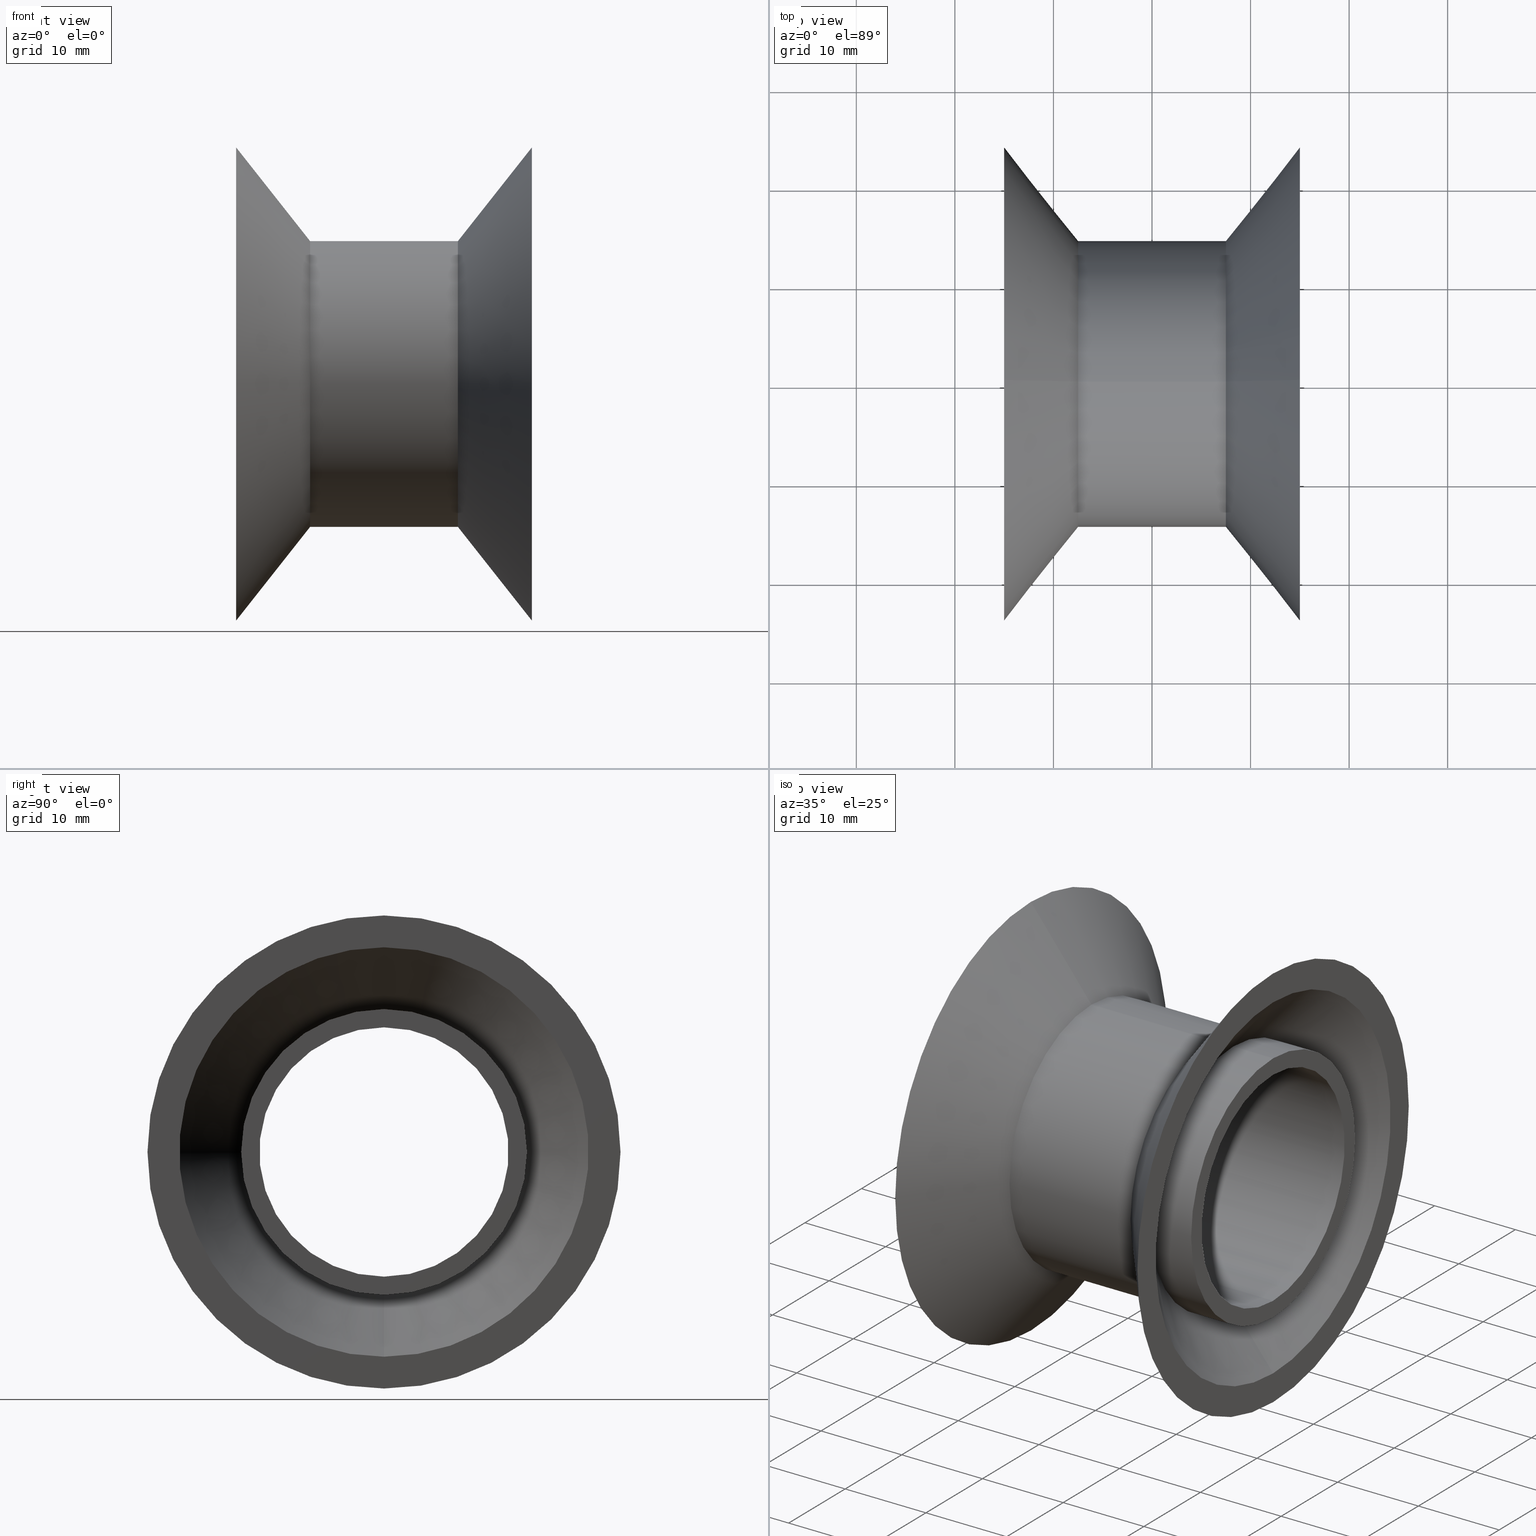
[diagram: canonical four-view strip — front | top / right | iso, engineering-drawing reading convention]
A machine part, canonical four-view strip (front | top / right | iso — engineering-drawing reading convention). The complete STEP part file that produces these views, byte-faithful:
ISO-10303-21;
HEADER;
FILE_DESCRIPTION (( 'STEP AP214' ),
    '1' );
FILE_NAME ('0023651.step',
    '2020-07-02T08:23:09',
    ( '' ),
    ( '' ),
    'SwSTEP 2.0',
    'SolidWorks 2018',
    '' );
FILE_SCHEMA (( 'AUTOMOTIVE_DESIGN' ));
ENDSEC;

DATA;
#1 = FACE_OUTER_BOUND ( 'NONE', #34, .T. ) ;
#2 = ORIENTED_EDGE ( 'NONE', *, *, #558, .T. ) ;
#3 = AXIS2_PLACEMENT_3D ( 'NONE', #494, #324, #500 ) ;
#4 = CARTESIAN_POINT ( 'NONE',  ( 15.00000000000000000, 0.0000000000000000000, -23.99999999999999289 ) ) ;
#5 = CARTESIAN_POINT ( 'NONE',  ( 15.00000000000000000, 0.0000000000000000000, -23.99999999999999289 ) ) ;
#6 = EDGE_CURVE ( 'NONE', #264, #127, #368, .T. ) ;
#7 = FACE_OUTER_BOUND ( 'NONE', #549, .T. ) ;
#8 = DIRECTION ( 'NONE',  ( 0.6196442885790208743, 0.0000000000000000000, -0.7848827655334259523 ) ) ;
#9 = PLANE ( 'NONE',  #327 ) ;
#10 = ORIENTED_EDGE ( 'NONE', *, *, #165, .T. ) ;
#11 = VERTEX_POINT ( 'NONE', #223 ) ;
#12 = PRODUCT ( '0023651', '0023651', '', ( #20 ) ) ;
#13 = ADVANCED_FACE ( 'NONE', ( #1 ), #148, .T. ) ;
#14 = DIRECTION ( 'NONE',  ( 0.0000000000000000000, 0.0000000000000000000, 1.000000000000000000 ) ) ;
#15 = CARTESIAN_POINT ( 'NONE',  ( 15.00000000000000000, 12.65000000000000036, 0.0000000000000000000 ) ) ;
#16 = CARTESIAN_POINT ( 'NONE',  ( 0.0000000000000000000, 0.0000000000000000000, 14.49999999999999822 ) ) ;
#17 = SURFACE_STYLE_FILL_AREA ( #213 ) ;
#18 = FACE_OUTER_BOUND ( 'NONE', #472, .T. ) ;
#19 = CARTESIAN_POINT ( 'NONE',  ( 10.04815124987582031, 0.0000000000000000000, 0.0000000000000000000 ) ) ;
#20 = PRODUCT_CONTEXT ( 'NONE', #556, 'mechanical' ) ;
#21 = EDGE_LOOP ( 'NONE', ( #95, #183 ) ) ;
#22 = CARTESIAN_POINT ( 'NONE',  ( 7.500000000000000000, 0.0000000000000000000, 0.0000000000000000000 ) ) ;
#23 = EDGE_CURVE ( 'NONE', #11, #164, #498, .T. ) ;
#24 = DIRECTION ( 'NONE',  ( 0.0000000000000000000, 0.0000000000000000000, 1.000000000000000000 ) ) ;
#25 = DIRECTION ( 'NONE',  ( 0.0000000000000000000, 0.0000000000000000000, 1.000000000000000000 ) ) ;
#26 = CYLINDRICAL_SURFACE ( 'NONE', #140, 12.65000000000000036 ) ;
#27 = ORIENTED_EDGE ( 'NONE', *, *, #103, .F. ) ;
#28 = CARTESIAN_POINT ( 'NONE',  ( -7.500000000000000000, 0.0000000000000000000, 0.0000000000000000000 ) ) ;
#29 = LINE ( 'NONE', #408, #529 ) ;
#30 = ORIENTED_EDGE ( 'NONE', *, *, #198, .T. ) ;
#31 = DIRECTION ( 'NONE',  ( -1.000000000000000000, -0.0000000000000000000, -0.0000000000000000000 ) ) ;
#32 = SURFACE_STYLE_FILL_AREA ( #466 ) ;
#33 = ORIENTED_EDGE ( 'NONE', *, *, #133, .F. ) ;
#34 = EDGE_LOOP ( 'NONE', ( #478, #568, #334, #537 ) ) ;
#35 = VERTEX_POINT ( 'NONE', #313 ) ;
#36 = DIRECTION ( 'NONE',  ( -1.000000000000000000, -0.0000000000000000000, -0.0000000000000000000 ) ) ;
#37 = CARTESIAN_POINT ( 'NONE',  ( 0.0000000000000000000, 0.0000000000000000000, 0.0000000000000000000 ) ) ;
#38 = PRESENTATION_LAYER_ASSIGNMENT (  '', '', ( #305 ) ) ;
#39 = CARTESIAN_POINT ( 'NONE',  ( -7.500000000000000000, 0.0000000000000000000, 14.49999999999999822 ) ) ;
#40 = CIRCLE ( 'NONE', #492, 14.49999999999999822 ) ;
#41 = DIRECTION ( 'NONE',  ( -1.000000000000000000, -0.0000000000000000000, -0.0000000000000000000 ) ) ;
#42 = DIRECTION ( 'NONE',  ( 0.0000000000000000000, 0.0000000000000000000, 1.000000000000000000 ) ) ;
#43 = EDGE_CURVE ( 'NONE', #390, #243, #443, .T. ) ;
#44 = ORIENTED_EDGE ( 'NONE', *, *, #558, .F. ) ;
#45 = DIRECTION ( 'NONE',  ( -0.6196442885790208743, 9.612041665164326271E-17, -0.7848827655334259523 ) ) ;
#46 = ORIENTED_EDGE ( 'NONE', *, *, #321, .F. ) ;
#47 = CARTESIAN_POINT ( 'NONE',  ( 0.0000000000000000000, 1.549178200921401754E-15, -12.65000000000000036 ) ) ;
#48 = LINE ( 'NONE', #275, #67 ) ;
#49 = CARTESIAN_POINT ( 'NONE',  ( 0.0000000000000000000, 0.0000000000000000000, 0.0000000000000000000 ) ) ;
#50 = AXIS2_PLACEMENT_3D ( 'NONE', #236, #413, #189 ) ;
#51 = ORIENTED_EDGE ( 'NONE', *, *, #266, .T. ) ;
#52 = CARTESIAN_POINT ( 'NONE',  ( 7.500000000000000000, 2.357445088358654363E-15, 14.49999999999999822 ) ) ;
#53 = FACE_BOUND ( 'NONE', #418, .T. ) ;
#54 = CARTESIAN_POINT ( 'NONE',  ( -15.00000000000000000, 0.0000000000000000000, 0.0000000000000000000 ) ) ;
#55 = ORIENTED_EDGE ( 'NONE', *, *, #207, .F. ) ;
#56 = EDGE_LOOP ( 'NONE', ( #201, #491, #80, #146 ) ) ;
#57 = DIRECTION ( 'NONE',  ( -0.6196442885790198751, 0.0000000000000000000, 0.7848827655334268405 ) ) ;
#58 = CARTESIAN_POINT ( 'NONE',  ( 14.99999999999999645, 20.77234175015728823, 0.0000000000000000000 ) ) ;
#59 = AXIS2_PLACEMENT_3D ( 'NONE', #541, #419, #363 ) ;
#60 = CARTESIAN_POINT ( 'NONE',  ( -15.00000000000000000, 0.0000000000000000000, 0.0000000000000000000 ) ) ;
#61 = ORIENTED_EDGE ( 'NONE', *, *, #287, .T. ) ;
#62 = ORIENTED_EDGE ( 'NONE', *, *, #218, .T. ) ;
#63 = EDGE_CURVE ( 'NONE', #221, #11, #199, .T. ) ;
#64 = CARTESIAN_POINT ( 'NONE',  ( -7.500000000000000000, 0.0000000000000000000, 14.49999999999999822 ) ) ;
#65 = CARTESIAN_POINT ( 'NONE',  ( 10.04815124987582031, 0.0000000000000000000, -14.49999999999998757 ) ) ;
#66 = CIRCLE ( 'NONE', #336, 20.77234175015728823 ) ;
#67 = VECTOR ( 'NONE', #371, 1000.000000000000000 ) ;
#68 = DIRECTION ( 'NONE',  ( 0.0000000000000000000, 0.0000000000000000000, 1.000000000000000000 ) ) ;
#69 = EDGE_LOOP ( 'NONE', ( #567, #544, #156, #200 ) ) ;
#70 = DIRECTION ( 'NONE',  ( -0.0000000000000000000, 0.0000000000000000000, 1.000000000000000000 ) ) ;
#71 = DIRECTION ( 'NONE',  ( -1.000000000000000000, -0.0000000000000000000, -0.0000000000000000000 ) ) ;
#72 = VERTEX_POINT ( 'NONE', #535 ) ;
#73 = CARTESIAN_POINT ( 'NONE',  ( -15.00000000000000000, 1.775737858763660832E-15, -14.49999999999998934 ) ) ;
#74 = ORIENTED_EDGE ( 'NONE', *, *, #6, .T. ) ;
#75 = ADVANCED_FACE ( 'NONE', ( #484 ), #114, .T. ) ;
#76 = EDGE_CURVE ( 'NONE', #476, #35, #347, .T. ) ;
#77 = CARTESIAN_POINT ( 'NONE',  ( 14.99999999999999467, 0.0000000000000000000, -20.77234175015728823 ) ) ;
#78 = DIRECTION ( 'NONE',  ( 0.0000000000000000000, 0.0000000000000000000, 1.000000000000000000 ) ) ;
#79 = FACE_OUTER_BOUND ( 'NONE', #555, .T. ) ;
#80 = ORIENTED_EDGE ( 'NONE', *, *, #125, .F. ) ;
#81 = PLANE ( 'NONE',  #435 ) ;
#82 = DIRECTION ( 'NONE',  ( 0.0000000000000000000, 0.0000000000000000000, 1.000000000000000000 ) ) ;
#83 = CONICAL_SURFACE ( 'NONE', #109, 23.99999999999999289, 0.9025069079643123215 ) ;
#84 = EDGE_CURVE ( 'NONE', #35, #448, #543, .T. ) ;
#85 = DIRECTION ( 'NONE',  ( -1.000000000000000000, -0.0000000000000000000, -0.0000000000000000000 ) ) ;
#86 = ORIENTED_EDGE ( 'NONE', *, *, #133, .T. ) ;
#87 = VERTEX_POINT ( 'NONE', #175 ) ;
#88 = DIRECTION ( 'NONE',  ( -1.000000000000000000, -0.0000000000000000000, -0.0000000000000000000 ) ) ;
#89 = DIRECTION ( 'NONE',  ( 0.0000000000000000000, 0.0000000000000000000, 1.000000000000000000 ) ) ;
#90 = ORIENTED_EDGE ( 'NONE', *, *, #469, .F. ) ;
#91 = ORIENTED_EDGE ( 'NONE', *, *, #274, .T. ) ;
#92 = DIRECTION ( 'NONE',  ( -1.000000000000000000, -0.0000000000000000000, -0.0000000000000000000 ) ) ;
#93 = EDGE_CURVE ( 'NONE', #221, #361, #29, .T. ) ;
#94 = AXIS2_PLACEMENT_3D ( 'NONE', #203, #288, #462 ) ;
#95 = ORIENTED_EDGE ( 'NONE', *, *, #550, .F. ) ;
#96 = FACE_OUTER_BOUND ( 'NONE', #300, .T. ) ;
#97 = DIRECTION ( 'NONE',  ( 0.0000000000000000000, 0.0000000000000000000, 1.000000000000000000 ) ) ;
#98 = AXIS2_PLACEMENT_3D ( 'NONE', #144, #104, #193 ) ;
#99 = DIRECTION ( 'NONE',  ( 0.0000000000000000000, 0.0000000000000000000, 1.000000000000000000 ) ) ;
#100 = EDGE_LOOP ( 'NONE', ( #434, #30 ) ) ;
#101 = ORIENTED_EDGE ( 'NONE', *, *, #185, .F. ) ;
#102 = CARTESIAN_POINT ( 'NONE',  ( -14.99999999999999467, 0.0000000000000000000, 20.77234175015728823 ) ) ;
#103 = EDGE_CURVE ( 'NONE', #302, #87, #233, .T. ) ;
#104 = DIRECTION ( 'NONE',  ( -1.000000000000000000, -0.0000000000000000000, -0.0000000000000000000 ) ) ;
#105 = DIRECTION ( 'NONE',  ( -0.0000000000000000000, 0.0000000000000000000, 1.000000000000000000 ) ) ;
#106 = EDGE_LOOP ( 'NONE', ( #260, #74 ) ) ;
#107 = DIRECTION ( 'NONE',  ( 0.0000000000000000000, 0.0000000000000000000, 1.000000000000000000 ) ) ;
#108 = DIRECTION ( 'NONE',  ( 0.0000000000000000000, 0.0000000000000000000, 1.000000000000000000 ) ) ;
#109 = AXIS2_PLACEMENT_3D ( 'NONE', #323, #195, #269 ) ;
#110 =( LENGTH_UNIT ( ) NAMED_UNIT ( * ) SI_UNIT ( .MILLI., .METRE. ) );
#111 =( NAMED_UNIT ( * ) PLANE_ANGLE_UNIT ( ) SI_UNIT ( $, .RADIAN. ) );
#112 = FACE_OUTER_BOUND ( 'NONE', #308, .T. ) ;
#113 = CARTESIAN_POINT ( 'NONE',  ( 10.04815124987582031, 0.0000000000000000000, 0.0000000000000000000 ) ) ;
#114 = CYLINDRICAL_SURFACE ( 'NONE', #173, 14.49999999999998934 ) ;
#115 = AXIS2_PLACEMENT_3D ( 'NONE', #126, #309, #307 ) ;
#116 = ORIENTED_EDGE ( 'NONE', *, *, #350, .T. ) ;
#117 = SURFACE_SIDE_STYLE ('',( #32 ) ) ;
#118 = CARTESIAN_POINT ( 'NONE',  ( -15.00000000000000000, 0.0000000000000000000, 0.0000000000000000000 ) ) ;
#119 = APPLICATION_PROTOCOL_DEFINITION ( 'draft international standard', 'automotive_design', 1998, #556 ) ;
#120 = CARTESIAN_POINT ( 'NONE',  ( -15.00000000000000000, 0.0000000000000000000, 0.0000000000000000000 ) ) ;
#121 = DIRECTION ( 'NONE',  ( -1.000000000000000000, -0.0000000000000000000, -0.0000000000000000000 ) ) ;
#122 = ADVANCED_FACE ( 'NONE', ( #79 ), #523, .T. ) ;
#123 = ORIENTED_EDGE ( 'NONE', *, *, #451, .T. ) ;
#124 = AXIS2_PLACEMENT_3D ( 'NONE', #553, #159, #108 ) ;
#125 = EDGE_CURVE ( 'NONE', #524, #341, #320, .T. ) ;
#126 = CARTESIAN_POINT ( 'NONE',  ( -7.500000000000000000, 0.0000000000000000000, 0.0000000000000000000 ) ) ;
#127 = VERTEX_POINT ( 'NONE', #570 ) ;
#128 = DIRECTION ( 'NONE',  ( -1.000000000000000000, -0.0000000000000000000, -0.0000000000000000000 ) ) ;
#129 = ORIENTED_EDGE ( 'NONE', *, *, #410, .T. ) ;
#130 = AXIS2_PLACEMENT_3D ( 'NONE', #152, #284, #24 ) ;
#131 = DIRECTION ( 'NONE',  ( 0.0000000000000000000, 0.0000000000000000000, -1.000000000000000000 ) ) ;
#132 = LINE ( 'NONE', #4, #387 ) ;
#133 = EDGE_CURVE ( 'NONE', #243, #390, #417, .T. ) ;
#134 = CARTESIAN_POINT ( 'NONE',  ( 15.00000000000000000, 2.939152317953647106E-15, 23.99999999999999289 ) ) ;
#135 = ORIENTED_EDGE ( 'NONE', *, *, #530, .F. ) ;
#136 = ORIENTED_EDGE ( 'NONE', *, *, #266, .F. ) ;
#137 = CARTESIAN_POINT ( 'NONE',  ( 0.0000000000000000000, 0.0000000000000000000, 14.49999999999998934 ) ) ;
#138 = FACE_OUTER_BOUND ( 'NONE', #170, .T. ) ;
#139 = UNCERTAINTY_MEASURE_WITH_UNIT (LENGTH_MEASURE( 1.000000000000000082E-05 ), #110, 'distance_accuracy_value', 'NONE');
#140 = AXIS2_PLACEMENT_3D ( 'NONE', #463, #510, #161 ) ;
#141 = ORIENTED_EDGE ( 'NONE', *, *, #194, .F. ) ;
#142 = AXIS2_PLACEMENT_3D ( 'NONE', #405, #311, #82 ) ;
#143 = FACE_OUTER_BOUND ( 'NONE', #234, .T. ) ;
#144 = CARTESIAN_POINT ( 'NONE',  ( 15.00000000000000000, 0.0000000000000000000, 0.0000000000000000000 ) ) ;
#145 = PLANE ( 'NONE',  #151 ) ;
#146 = ORIENTED_EDGE ( 'NONE', *, *, #410, .F. ) ;
#147 = CARTESIAN_POINT ( 'NONE',  ( 7.500000000000000000, 0.0000000000000000000, -14.49999999999999822 ) ) ;
#148 = CYLINDRICAL_SURFACE ( 'NONE', #522, 14.49999999999998934 ) ;
#149 = ORIENTED_EDGE ( 'NONE', *, *, #43, .F. ) ;
#150 = CARTESIAN_POINT ( 'NONE',  ( 14.99999999999999467, 2.543878183512505106E-15, 20.77234175015728823 ) ) ;
#151 = AXIS2_PLACEMENT_3D ( 'NONE', #15, #335, #70 ) ;
#152 = CARTESIAN_POINT ( 'NONE',  ( -7.500000000000000000, 0.0000000000000000000, 0.0000000000000000000 ) ) ;
#153 = CIRCLE ( 'NONE', #98, 23.99999999999999289 ) ;
#154 = DIRECTION ( 'NONE',  ( 0.0000000000000000000, 0.0000000000000000000, 1.000000000000000000 ) ) ;
#155 = ADVANCED_FACE ( 'NONE', ( #411, #389 ), #81, .F. ) ;
#156 = ORIENTED_EDGE ( 'NONE', *, *, #310, .F. ) ;
#157 = ORIENTED_EDGE ( 'NONE', *, *, #84, .F. ) ;
#158 = PRODUCT_DEFINITION ( 'UNKNOWN', '', #509, #196 ) ;
#159 = DIRECTION ( 'NONE',  ( -1.000000000000000000, -0.0000000000000000000, -0.0000000000000000000 ) ) ;
#160 = CARTESIAN_POINT ( 'NONE',  ( 0.0000000000000000000, 0.0000000000000000000, 14.49999999999998934 ) ) ;
#161 = DIRECTION ( 'NONE',  ( 0.0000000000000000000, 0.0000000000000000000, 1.000000000000000000 ) ) ;
#162 = CIRCLE ( 'NONE', #297, 12.65000000000000036 ) ;
#163 = SURFACE_SIDE_STYLE ('',( #17 ) ) ;
#164 = VERTEX_POINT ( 'NONE', #440 ) ;
#165 = EDGE_CURVE ( 'NONE', #390, #127, #465, .T. ) ;
#166 = EDGE_LOOP ( 'NONE', ( #192, #280 ) ) ;
#167 = ADVANCED_FACE ( 'NONE', ( #536 ), #513, .T. ) ;
#168 = LINE ( 'NONE', #547, #254 ) ;
#169 = CIRCLE ( 'NONE', #358, 20.77234175015728823 ) ;
#170 = EDGE_LOOP ( 'NONE', ( #425, #445 ) ) ;
#171 = AXIS2_PLACEMENT_3D ( 'NONE', #60, #375, #154 ) ;
#172 = DIRECTION ( 'NONE',  ( -1.000000000000000000, -0.0000000000000000000, -0.0000000000000000000 ) ) ;
#173 = AXIS2_PLACEMENT_3D ( 'NONE', #49, #92, #357 ) ;
#174 = CIRCLE ( 'NONE', #403, 23.99999999999999289 ) ;
#175 = CARTESIAN_POINT ( 'NONE',  ( 15.00000000000000000, 2.939152317953647106E-15, 23.99999999999999289 ) ) ;
#176 = ORIENTED_EDGE ( 'NONE', *, *, #574, .T. ) ;
#177 = DIRECTION ( 'NONE',  ( 1.000000000000000000, 0.0000000000000000000, 0.0000000000000000000 ) ) ;
#178 = EDGE_LOOP ( 'NONE', ( #44, #486, #176, #467 ) ) ;
#179 = DIRECTION ( 'NONE',  ( 0.0000000000000000000, 0.0000000000000000000, -1.000000000000000000 ) ) ;
#180 = AXIS2_PLACEMENT_3D ( 'NONE', #202, #378, #505 ) ;
#181 = FACE_OUTER_BOUND ( 'NONE', #106, .T. ) ;
#182 = CARTESIAN_POINT ( 'NONE',  ( 15.00000000000000000, 0.0000000000000000000, 0.0000000000000000000 ) ) ;
#183 = ORIENTED_EDGE ( 'NONE', *, *, #496, .F. ) ;
#184 = ORIENTED_EDGE ( 'NONE', *, *, #321, .T. ) ;
#185 = EDGE_CURVE ( 'NONE', #243, #264, #306, .T. ) ;
#186 = DIRECTION ( 'NONE',  ( -1.000000000000000000, -0.0000000000000000000, -0.0000000000000000000 ) ) ;
#187 = CONICAL_SURFACE ( 'NONE', #124, 20.77234175015728823, 0.9025069079643135428 ) ;
#188 = AXIS2_PLACEMENT_3D ( 'NONE', #333, #241, #107 ) ;
#189 = DIRECTION ( 'NONE',  ( 0.0000000000000000000, 0.0000000000000000000, 1.000000000000000000 ) ) ;
#190 = DIRECTION ( 'NONE',  ( -1.000000000000000000, -0.0000000000000000000, -0.0000000000000000000 ) ) ;
#191 = VECTOR ( 'NONE', #488, 1000.000000000000000 ) ;
#192 = ORIENTED_EDGE ( 'NONE', *, *, #446, .F. ) ;
#193 = DIRECTION ( 'NONE',  ( 0.0000000000000000000, 0.0000000000000000000, 1.000000000000000000 ) ) ;
#194 = EDGE_CURVE ( 'NONE', #341, #524, #169, .T. ) ;
#195 = DIRECTION ( 'NONE',  ( 1.000000000000000000, 0.0000000000000000000, 0.0000000000000000000 ) ) ;
#196 = PRODUCT_DEFINITION_CONTEXT ( 'detailed design', #283, 'design' ) ;
#197 = ADVANCED_FACE ( 'NONE', ( #277 ), #206, .T. ) ;
#198 = EDGE_CURVE ( 'NONE', #507, #72, #527, .T. ) ;
#199 = CIRCLE ( 'NONE', #329, 14.49999999999998934 ) ;
#200 = ORIENTED_EDGE ( 'NONE', *, *, #165, .F. ) ;
#201 = ORIENTED_EDGE ( 'NONE', *, *, #362, .T. ) ;
#202 = CARTESIAN_POINT ( 'NONE',  ( 0.0000000000000000000, 0.0000000000000000000, 0.0000000000000000000 ) ) ;
#203 = CARTESIAN_POINT ( 'NONE',  ( 0.0000000000000000000, 0.0000000000000000000, 0.0000000000000000000 ) ) ;
#204 = ADVANCED_FACE ( 'NONE', ( #377 ), #268, .T. ) ;
#205 = LINE ( 'NONE', #160, #489 ) ;
#206 = CYLINDRICAL_SURFACE ( 'NONE', #552, 14.49999999999998934 ) ;
#207 = EDGE_CURVE ( 'NONE', #299, #87, #174, .T. ) ;
#208 = ORIENTED_EDGE ( 'NONE', *, *, #301, .T. ) ;
#209 = ORIENTED_EDGE ( 'NONE', *, *, #451, .F. ) ;
#210 = SURFACE_STYLE_USAGE ( .BOTH. , #163 ) ;
#211 = CARTESIAN_POINT ( 'NONE',  ( 0.0000000000000000000, 1.775737858763660832E-15, -14.49999999999998934 ) ) ;
#212 = ADVANCED_FACE ( 'NONE', ( #138, #53 ), #145, .F. ) ;
#213 = FILL_AREA_STYLE ('',( #386 ) ) ;
#214 = CARTESIAN_POINT ( 'NONE',  ( 10.04815124987582031, 0.0000000000000000000, 0.0000000000000000000 ) ) ;
#215 = CARTESIAN_POINT ( 'NONE',  ( -10.04815124987582031, 0.0000000000000000000, 0.0000000000000000000 ) ) ;
#216 = AXIS2_PLACEMENT_3D ( 'NONE', #338, #559, #438 ) ;
#217 = EDGE_LOOP ( 'NONE', ( #157, #406, #222, #407 ) ) ;
#218 = EDGE_CURVE ( 'NONE', #448, #572, #162, .T. ) ;
#219 = DIRECTION ( 'NONE',  ( -1.000000000000000000, -0.0000000000000000000, -0.0000000000000000000 ) ) ;
#220 = COLOUR_RGB ( '',0.9254901960784314152, 0.9254901960784314152, 0.9058823529411764719 ) ;
#221 = VERTEX_POINT ( 'NONE', #366 ) ;
#222 = ORIENTED_EDGE ( 'NONE', *, *, #248, .T. ) ;
#223 = CARTESIAN_POINT ( 'NONE',  ( 15.00000000000000000, 0.0000000000000000000, 14.49999999999998934 ) ) ;
#224 = CARTESIAN_POINT ( 'NONE',  ( 15.00000000000000000, 0.0000000000000000000, 0.0000000000000000000 ) ) ;
#225 = EDGE_CURVE ( 'NONE', #255, #271, #540, .T. ) ;
#226 = VECTOR ( 'NONE', #293, 1000.000000000000114 ) ;
#227 = ORIENTED_EDGE ( 'NONE', *, *, #207, .T. ) ;
#228 = AXIS2_PLACEMENT_3D ( 'NONE', #528, #88, #532 ) ;
#229 = DIRECTION ( 'NONE',  ( -1.000000000000000000, -0.0000000000000000000, -0.0000000000000000000 ) ) ;
#230 = AXIS2_PLACEMENT_3D ( 'NONE', #444, #480, #385 ) ;
#231 = VECTOR ( 'NONE', #382, 1000.000000000000114 ) ;
#232 = ORIENTED_EDGE ( 'NONE', *, *, #274, .F. ) ;
#233 = LINE ( 'NONE', #134, #554 ) ;
#234 = EDGE_LOOP ( 'NONE', ( #242, #232, #370, #317 ) ) ;
#235 = CARTESIAN_POINT ( 'NONE',  ( 7.500000000000000000, 0.0000000000000000000, 0.0000000000000000000 ) ) ;
#236 = CARTESIAN_POINT ( 'NONE',  ( -10.04815124987582031, 0.0000000000000000000, 0.0000000000000000000 ) ) ;
#237 = ORIENTED_EDGE ( 'NONE', *, *, #103, .T. ) ;
#238 = DIRECTION ( 'NONE',  ( -1.000000000000000000, -0.0000000000000000000, -0.0000000000000000000 ) ) ;
#239 = DIRECTION ( 'NONE',  ( 1.000000000000000000, 0.0000000000000000000, 0.0000000000000000000 ) ) ;
#240 = PRESENTATION_LAYER_ASSIGNMENT (  '', '', ( #546 ) ) ;
#241 = DIRECTION ( 'NONE',  ( -1.000000000000000000, -0.0000000000000000000, -0.0000000000000000000 ) ) ;
#242 = ORIENTED_EDGE ( 'NONE', *, *, #477, .F. ) ;
#243 = VERTEX_POINT ( 'NONE', #270 ) ;
#244 =( NAMED_UNIT ( * ) PLANE_ANGLE_UNIT ( ) SI_UNIT ( $, .RADIAN. ) );
#245 = CARTESIAN_POINT ( 'NONE',  ( 10.04815124987582031, 0.0000000000000000000, 0.0000000000000000000 ) ) ;
#246 = DIRECTION ( 'NONE',  ( 0.6196442885790198751, 9.612041665164336132E-17, 0.7848827655334268405 ) ) ;
#247 = DIRECTION ( 'NONE',  ( 0.0000000000000000000, 0.0000000000000000000, 1.000000000000000000 ) ) ;
#248 = EDGE_CURVE ( 'NONE', #476, #572, #168, .T. ) ;
#249 = ORIENTED_EDGE ( 'NONE', *, *, #23, .F. ) ;
#250 = CARTESIAN_POINT ( 'NONE',  ( 15.00000000000000000, 0.0000000000000000000, 12.65000000000000036 ) ) ;
#251 = EDGE_LOOP ( 'NONE', ( #326, #426 ) ) ;
#252 = CARTESIAN_POINT ( 'NONE',  ( -14.99999999999999467, 2.543878183512505106E-15, -20.77234175015728823 ) ) ;
#253 = COLOUR_RGB ( '',0.9254901960784314152, 0.9254901960784314152, 0.9058823529411764719 ) ;
#254 = VECTOR ( 'NONE', #186, 1000.000000000000000 ) ;
#255 = VERTEX_POINT ( 'NONE', #456 ) ;
#256 = CARTESIAN_POINT ( 'NONE',  ( -7.500000000000000000, 1.775737858763662015E-15, -14.49999999999999822 ) ) ;
#257 = FACE_BOUND ( 'NONE', #251, .T. ) ;
#258 = DIRECTION ( 'NONE',  ( 1.000000000000000000, 0.0000000000000000000, 0.0000000000000000000 ) ) ;
#259 = VECTOR ( 'NONE', #45, 1000.000000000000114 ) ;
#260 = ORIENTED_EDGE ( 'NONE', *, *, #310, .T. ) ;
#261 =( GEOMETRIC_REPRESENTATION_CONTEXT ( 3 ) GLOBAL_UNCERTAINTY_ASSIGNED_CONTEXT ( ( #563 ) ) GLOBAL_UNIT_ASSIGNED_CONTEXT ( ( #429, #244, #464 ) ) REPRESENTATION_CONTEXT ( 'NONE', 'WORKASPACE' ) );
#262 =( GEOMETRIC_REPRESENTATION_CONTEXT ( 3 ) GLOBAL_UNCERTAINTY_ASSIGNED_CONTEXT ( ( #344 ) ) GLOBAL_UNIT_ASSIGNED_CONTEXT ( ( #557, #111, #427 ) ) REPRESENTATION_CONTEXT ( 'NONE', 'WORKASPACE' ) );
#263 = LINE ( 'NONE', #16, #393 ) ;
#264 = VERTEX_POINT ( 'NONE', #493 ) ;
#265 = EDGE_LOOP ( 'NONE', ( #208, #51, #149, #278 ) ) ;
#266 = EDGE_CURVE ( 'NONE', #291, #243, #48, .T. ) ;
#267 = AXIS2_PLACEMENT_3D ( 'NONE', #342, #473, #78 ) ;
#268 = CYLINDRICAL_SURFACE ( 'NONE', #514, 14.49999999999999822 ) ;
#269 = DIRECTION ( 'NONE',  ( 0.0000000000000000000, 0.0000000000000000000, -1.000000000000000000 ) ) ;
#270 = CARTESIAN_POINT ( 'NONE',  ( -7.500000000000000000, 1.775737858763662015E-15, -14.49999999999999822 ) ) ;
#271 = VERTEX_POINT ( 'NONE', #545 ) ;
#272 = ORIENTED_EDGE ( 'NONE', *, *, #301, .F. ) ;
#273 = ORIENTED_EDGE ( 'NONE', *, *, #6, .F. ) ;
#274 = EDGE_CURVE ( 'NONE', #255, #365, #286, .T. ) ;
#275 = CARTESIAN_POINT ( 'NONE',  ( 0.0000000000000000000, 1.775737858763662015E-15, -14.49999999999999822 ) ) ;
#276 = CARTESIAN_POINT ( 'NONE',  ( -14.99999999999999467, 0.0000000000000000000, 0.0000000000000000000 ) ) ;
#277 = FACE_OUTER_BOUND ( 'NONE', #178, .T. ) ;
#278 = ORIENTED_EDGE ( 'NONE', *, *, #460, .F. ) ;
#279 = DIRECTION ( 'NONE',  ( -1.000000000000000000, -0.0000000000000000000, -0.0000000000000000000 ) ) ;
#280 = ORIENTED_EDGE ( 'NONE', *, *, #218, .F. ) ;
#281 =( NAMED_UNIT ( * ) SI_UNIT ( $, .STERADIAN. ) SOLID_ANGLE_UNIT ( ) );
#282 = DIRECTION ( 'NONE',  ( -1.000000000000000000, -0.0000000000000000000, -0.0000000000000000000 ) ) ;
#283 = APPLICATION_CONTEXT ( 'automotive_design' ) ;
#284 = DIRECTION ( 'NONE',  ( -1.000000000000000000, -0.0000000000000000000, -0.0000000000000000000 ) ) ;
#285 = CARTESIAN_POINT ( 'NONE',  ( 15.00000000000000000, 0.0000000000000000000, 0.0000000000000000000 ) ) ;
#286 = CIRCLE ( 'NONE', #50, 14.49999999999998757 ) ;
#287 = EDGE_CURVE ( 'NONE', #11, #221, #402, .T. ) ;
#288 = DIRECTION ( 'NONE',  ( 0.0000000000000000000, 0.0000000000000000000, 1.000000000000000000 ) ) ;
#289 = CARTESIAN_POINT ( 'NONE',  ( 10.04815124987582031, 1.775737858763660437E-15, -14.49999999999998757 ) ) ;
#290 = EDGE_LOOP ( 'NONE', ( #101, #86, #10, #273 ) ) ;
#291 = VERTEX_POINT ( 'NONE', #147 ) ;
#292 = CARTESIAN_POINT ( 'NONE',  ( -15.00000000000000000, 0.0000000000000000000, 12.65000000000000036 ) ) ;
#293 = DIRECTION ( 'NONE',  ( -0.6196442885790198751, 9.612041665164336132E-17, -0.7848827655334268405 ) ) ;
#294 = ADVANCED_FACE ( 'NONE', ( #354 ), #83, .T. ) ;
#295 = DIRECTION ( 'NONE',  ( 0.0000000000000000000, 0.0000000000000000000, 1.000000000000000000 ) ) ;
#296 = CIRCLE ( 'NONE', #216, 12.65000000000000036 ) ;
#297 = AXIS2_PLACEMENT_3D ( 'NONE', #118, #436, #97 ) ;
#298 = ORIENTED_EDGE ( 'NONE', *, *, #460, .T. ) ;
#299 = VERTEX_POINT ( 'NONE', #5 ) ;
#300 = EDGE_LOOP ( 'NONE', ( #209, #332, #62, #356 ) ) ;
#301 = EDGE_CURVE ( 'NONE', #302, #291, #40, .T. ) ;
#302 = VERTEX_POINT ( 'NONE', #52 ) ;
#303 = CIRCLE ( 'NONE', #394, 14.49999999999998757 ) ;
#304 = CARTESIAN_POINT ( 'NONE',  ( 0.0000000000000000000, 0.0000000000000000000, 0.0000000000000000000 ) ) ;
#305 = STYLED_ITEM ( 'NONE', ( #482 ), #392 ) ;
#306 = LINE ( 'NONE', #256, #259 ) ;
#307 = DIRECTION ( 'NONE',  ( 0.0000000000000000000, 0.0000000000000000000, 1.000000000000000000 ) ) ;
#308 = EDGE_LOOP ( 'NONE', ( #314, #116, #129, #141 ) ) ;
#309 = DIRECTION ( 'NONE',  ( -1.000000000000000000, -0.0000000000000000000, -0.0000000000000000000 ) ) ;
#310 = EDGE_CURVE ( 'NONE', #127, #264, #415, .T. ) ;
#311 = DIRECTION ( 'NONE',  ( -1.000000000000000000, -0.0000000000000000000, -0.0000000000000000000 ) ) ;
#312 = DIRECTION ( 'NONE',  ( 1.000000000000000000, 0.0000000000000000000, 0.0000000000000000000 ) ) ;
#313 = CARTESIAN_POINT ( 'NONE',  ( 15.00000000000000000, 1.549178200921401754E-15, -12.65000000000000036 ) ) ;
#314 = ORIENTED_EDGE ( 'NONE', *, *, #384, .F. ) ;
#315 = ORIENTED_EDGE ( 'NONE', *, *, #93, .T. ) ;
#316 = CARTESIAN_POINT ( 'NONE',  ( -7.500000000000000000, 0.0000000000000000000, 0.0000000000000000000 ) ) ;
#317 = ORIENTED_EDGE ( 'NONE', *, *, #550, .T. ) ;
#318 = AXIS2_PLACEMENT_3D ( 'NONE', #215, #31, #520 ) ;
#319 = CONICAL_SURFACE ( 'NONE', #369, 14.49999999999999822, 0.9025069079643123215 ) ;
#320 = CIRCLE ( 'NONE', #539, 20.77234175015728823 ) ;
#321 = EDGE_CURVE ( 'NONE', #87, #299, #153, .T. ) ;
#322 = EDGE_LOOP ( 'NONE', ( #27, #379, #453, #227 ) ) ;
#323 = CARTESIAN_POINT ( 'NONE',  ( 15.00000000000000000, 0.0000000000000000000, 0.0000000000000000000 ) ) ;
#324 = DIRECTION ( 'NONE',  ( -1.000000000000000000, -0.0000000000000000000, -0.0000000000000000000 ) ) ;
#325 = ADVANCED_FACE ( 'NONE', ( #503, #257 ), #9, .F. ) ;
#326 = ORIENTED_EDGE ( 'NONE', *, *, #125, .T. ) ;
#327 = AXIS2_PLACEMENT_3D ( 'NONE', #58, #367, #105 ) ;
#328 = SURFACE_STYLE_USAGE ( .BOTH. , #117 ) ;
#329 = AXIS2_PLACEMENT_3D ( 'NONE', #182, #229, #449 ) ;
#330 = CIRCLE ( 'NONE', #381, 14.49999999999998934 ) ;
#331 = CONICAL_SURFACE ( 'NONE', #565, 14.49999999999998757, 0.9025069079643135428 ) ;
#332 = ORIENTED_EDGE ( 'NONE', *, *, #84, .T. ) ;
#333 = CARTESIAN_POINT ( 'NONE',  ( -14.99999999999999467, 0.0000000000000000000, 0.0000000000000000000 ) ) ;
#334 = ORIENTED_EDGE ( 'NONE', *, *, #23, .T. ) ;
#335 = DIRECTION ( 'NONE',  ( -1.000000000000000000, 0.0000000000000000000, -0.0000000000000000000 ) ) ;
#336 = AXIS2_PLACEMENT_3D ( 'NONE', #276, #353, #349 ) ;
#337 = CARTESIAN_POINT ( 'NONE',  ( 0.0000000000000000000, 0.0000000000000000000, 0.0000000000000000000 ) ) ;
#338 = CARTESIAN_POINT ( 'NONE',  ( 15.00000000000000000, 0.0000000000000000000, 0.0000000000000000000 ) ) ;
#339 = ADVANCED_FACE ( 'NONE', ( #430, #181 ), #497, .F. ) ;
#340 = AXIS2_PLACEMENT_3D ( 'NONE', #316, #359, #89 ) ;
#341 = VERTEX_POINT ( 'NONE', #150 ) ;
#342 = CARTESIAN_POINT ( 'NONE',  ( -14.99999999999999467, 0.0000000000000000000, 0.0000000000000000000 ) ) ;
#343 = EDGE_CURVE ( 'NONE', #291, #299, #132, .T. ) ;
#344 = UNCERTAINTY_MEASURE_WITH_UNIT (LENGTH_MEASURE( 1.000000000000000082E-05 ), #557, 'distance_accuracy_value', 'NONE');
#345 = LINE ( 'NONE', #211, #526 ) ;
#346 = AXIS2_PLACEMENT_3D ( 'NONE', #337, #562, #247 ) ;
#347 = CIRCLE ( 'NONE', #228, 12.65000000000000036 ) ;
#348 = EDGE_LOOP ( 'NONE', ( #55, #46 ) ) ;
#349 = DIRECTION ( 'NONE',  ( 0.0000000000000000000, 0.0000000000000000000, 1.000000000000000000 ) ) ;
#350 = EDGE_CURVE ( 'NONE', #164, #361, #303, .T. ) ;
#351 = PRODUCT_DEFINITION_SHAPE ( 'NONE', 'NONE',  #158 ) ;
#352 = CARTESIAN_POINT ( 'NONE',  ( 14.99999999999999467, 0.0000000000000000000, 0.0000000000000000000 ) ) ;
#353 = DIRECTION ( 'NONE',  ( -1.000000000000000000, -0.0000000000000000000, -0.0000000000000000000 ) ) ;
#354 = FACE_OUTER_BOUND ( 'NONE', #322, .T. ) ;
#355 = CARTESIAN_POINT ( 'NONE',  ( -15.00000000000000000, 12.65000000000000036, 0.0000000000000000000 ) ) ;
#356 = ORIENTED_EDGE ( 'NONE', *, *, #248, .F. ) ;
#357 = DIRECTION ( 'NONE',  ( 0.0000000000000000000, 0.0000000000000000000, 1.000000000000000000 ) ) ;
#358 = AXIS2_PLACEMENT_3D ( 'NONE', #485, #172, #533 ) ;
#359 = DIRECTION ( 'NONE',  ( -1.000000000000000000, -0.0000000000000000000, -0.0000000000000000000 ) ) ;
#360 = CYLINDRICAL_SURFACE ( 'NONE', #180, 14.49999999999999822 ) ;
#361 = VERTEX_POINT ( 'NONE', #289 ) ;
#362 = EDGE_CURVE ( 'NONE', #361, #164, #442, .T. ) ;
#363 = DIRECTION ( 'NONE',  ( 0.0000000000000000000, 0.0000000000000000000, -1.000000000000000000 ) ) ;
#364 = ORIENTED_EDGE ( 'NONE', *, *, #225, .F. ) ;
#365 = VERTEX_POINT ( 'NONE', #373 ) ;
#366 = CARTESIAN_POINT ( 'NONE',  ( 15.00000000000000000, 1.775737858763660832E-15, -14.49999999999998934 ) ) ;
#367 = DIRECTION ( 'NONE',  ( -1.000000000000000000, 0.0000000000000000000, -0.0000000000000000000 ) ) ;
#368 = CIRCLE ( 'NONE', #399, 23.99999999999999289 ) ;
#369 = AXIS2_PLACEMENT_3D ( 'NONE', #28, #121, #295 ) ;
#370 = ORIENTED_EDGE ( 'NONE', *, *, #225, .T. ) ;
#371 = DIRECTION ( 'NONE',  ( -1.000000000000000000, -0.0000000000000000000, -0.0000000000000000000 ) ) ;
#372 = ADVANCED_FACE ( 'NONE', ( #18 ), #360, .T. ) ;
#373 = CARTESIAN_POINT ( 'NONE',  ( -10.04815124987582031, 2.159808021138082771E-15, -14.49999999999998757 ) ) ;
#374 = EDGE_CURVE ( 'NONE', #291, #302, #495, .T. ) ;
#375 = DIRECTION ( 'NONE',  ( -1.000000000000000000, -0.0000000000000000000, -0.0000000000000000000 ) ) ;
#376 = ADVANCED_FACE ( 'NONE', ( #143 ), #471, .F. ) ;
#377 = FACE_OUTER_BOUND ( 'NONE', #265, .T. ) ;
#378 = DIRECTION ( 'NONE',  ( -1.000000000000000000, -0.0000000000000000000, -0.0000000000000000000 ) ) ;
#379 = ORIENTED_EDGE ( 'NONE', *, *, #374, .F. ) ;
#380 = ORIENTED_EDGE ( 'NONE', *, *, #496, .T. ) ;
#381 = AXIS2_PLACEMENT_3D ( 'NONE', #120, #437, #516 ) ;
#382 = DIRECTION ( 'NONE',  ( 0.6196442885790198751, 0.0000000000000000000, -0.7848827655334268405 ) ) ;
#383 = CARTESIAN_POINT ( 'NONE',  ( 10.04815124987582031, 1.775737858763660437E-15, 14.49999999999998757 ) ) ;
#384 = EDGE_CURVE ( 'NONE', #164, #341, #566, .T. ) ;
#385 = DIRECTION ( 'NONE',  ( 0.0000000000000000000, 0.0000000000000000000, 1.000000000000000000 ) ) ;
#386 = FILL_AREA_STYLE_COLOUR ( '', #253 ) ;
#387 = VECTOR ( 'NONE', #8, 1000.000000000000114 ) ;
#388 = ADVANCED_FACE ( 'NONE', ( #7 ), #187, .F. ) ;
#389 = FACE_OUTER_BOUND ( 'NONE', #100, .T. ) ;
#390 = VERTEX_POINT ( 'NONE', #64 ) ;
#391 = DIRECTION ( 'NONE',  ( -1.000000000000000000, -0.0000000000000000000, -0.0000000000000000000 ) ) ;
#392 = MANIFOLD_SOLID_BREP ( 'Rotation1', #517 ) ;
#393 = VECTOR ( 'NONE', #391, 1000.000000000000000 ) ;
#394 = AXIS2_PLACEMENT_3D ( 'NONE', #19, #282, #68 ) ;
#395 = VECTOR ( 'NONE', #246, 1000.000000000000114 ) ;
#396 = EDGE_LOOP ( 'NONE', ( #272, #237, #184, #397 ) ) ;
#397 = ORIENTED_EDGE ( 'NONE', *, *, #343, .F. ) ;
#398 = DIRECTION ( 'NONE',  ( -1.000000000000000000, -0.0000000000000000000, -0.0000000000000000000 ) ) ;
#399 = AXIS2_PLACEMENT_3D ( 'NONE', #569, #41, #404 ) ;
#400 = DIRECTION ( 'NONE',  ( 0.0000000000000000000, 0.0000000000000000000, 1.000000000000000000 ) ) ;
#401 = DIRECTION ( 'NONE',  ( 0.0000000000000000000, 0.0000000000000000000, 1.000000000000000000 ) ) ;
#402 = CIRCLE ( 'NONE', #3, 14.49999999999998934 ) ;
#403 = AXIS2_PLACEMENT_3D ( 'NONE', #285, #432, #25 ) ;
#404 = DIRECTION ( 'NONE',  ( 0.0000000000000000000, 0.0000000000000000000, 1.000000000000000000 ) ) ;
#405 = CARTESIAN_POINT ( 'NONE',  ( 0.0000000000000000000, 0.0000000000000000000, 0.0000000000000000000 ) ) ;
#406 = ORIENTED_EDGE ( 'NONE', *, *, #76, .F. ) ;
#407 = ORIENTED_EDGE ( 'NONE', *, *, #446, .T. ) ;
#408 = CARTESIAN_POINT ( 'NONE',  ( 0.0000000000000000000, 1.775737858763660832E-15, -14.49999999999998934 ) ) ;
#409 = FACE_OUTER_BOUND ( 'NONE', #56, .T. ) ;
#410 = EDGE_CURVE ( 'NONE', #361, #524, #474, .T. ) ;
#411 = FACE_BOUND ( 'NONE', #166, .T. ) ;
#412 = ORIENTED_EDGE ( 'NONE', *, *, #76, .T. ) ;
#413 = DIRECTION ( 'NONE',  ( -1.000000000000000000, -0.0000000000000000000, -0.0000000000000000000 ) ) ;
#414 = CONICAL_SURFACE ( 'NONE', #455, 14.49999999999998757, 0.9025069079643135428 ) ;
#415 = CIRCLE ( 'NONE', #519, 23.99999999999999289 ) ;
#416 = DIRECTION ( 'NONE',  ( -1.000000000000000000, -0.0000000000000000000, -0.0000000000000000000 ) ) ;
#417 = CIRCLE ( 'NONE', #115, 14.49999999999999822 ) ;
#418 = EDGE_LOOP ( 'NONE', ( #412, #123 ) ) ;
#419 = DIRECTION ( 'NONE',  ( 1.000000000000000000, 0.0000000000000000000, 0.0000000000000000000 ) ) ;
#420 = ADVANCED_FACE ( 'NONE', ( #112 ), #331, .F. ) ;
#421 = CIRCLE ( 'NONE', #267, 20.77234175015728823 ) ;
#422 = FILL_AREA_STYLE_COLOUR ( '', #220 ) ;
#423 = AXIS2_PLACEMENT_3D ( 'NONE', #113, #279, #512 ) ;
#424 = ADVANCED_FACE ( 'NONE', ( #96 ), #26, .F. ) ;
#425 = ORIENTED_EDGE ( 'NONE', *, *, #287, .F. ) ;
#426 = ORIENTED_EDGE ( 'NONE', *, *, #194, .T. ) ;
#427 =( NAMED_UNIT ( * ) SI_UNIT ( $, .STERADIAN. ) SOLID_ANGLE_UNIT ( ) );
#428 = ADVANCED_FACE ( 'NONE', ( #551 ), #534, .T. ) ;
#429 =( LENGTH_UNIT ( ) NAMED_UNIT ( * ) SI_UNIT ( .MILLI., .METRE. ) );
#430 = FACE_BOUND ( 'NONE', #21, .T. ) ;
#431 = DIRECTION ( 'NONE',  ( 0.0000000000000000000, 0.0000000000000000000, -1.000000000000000000 ) ) ;
#432 = DIRECTION ( 'NONE',  ( -1.000000000000000000, -0.0000000000000000000, -0.0000000000000000000 ) ) ;
#433 = VECTOR ( 'NONE', #483, 1000.000000000000000 ) ;
#434 = ORIENTED_EDGE ( 'NONE', *, *, #530, .T. ) ;
#435 = AXIS2_PLACEMENT_3D ( 'NONE', #355, #258, #179 ) ;
#436 = DIRECTION ( 'NONE',  ( -1.000000000000000000, -0.0000000000000000000, -0.0000000000000000000 ) ) ;
#437 = DIRECTION ( 'NONE',  ( -1.000000000000000000, -0.0000000000000000000, -0.0000000000000000000 ) ) ;
#438 = DIRECTION ( 'NONE',  ( 0.0000000000000000000, 0.0000000000000000000, 1.000000000000000000 ) ) ;
#439 = ORIENTED_EDGE ( 'NONE', *, *, #350, .F. ) ;
#440 = CARTESIAN_POINT ( 'NONE',  ( 10.04815124987582031, 0.0000000000000000000, 14.49999999999998757 ) ) ;
#441 = LINE ( 'NONE', #252, #226 ) ;
#442 = CIRCLE ( 'NONE', #423, 14.49999999999998757 ) ;
#443 = CIRCLE ( 'NONE', #340, 14.49999999999999822 ) ;
#444 = CARTESIAN_POINT ( 'NONE',  ( -15.00000000000000000, 0.0000000000000000000, 0.0000000000000000000 ) ) ;
#445 = ORIENTED_EDGE ( 'NONE', *, *, #63, .F. ) ;
#446 = EDGE_CURVE ( 'NONE', #572, #448, #450, .T. ) ;
#447 = FACE_OUTER_BOUND ( 'NONE', #69, .T. ) ;
#448 = VERTEX_POINT ( 'NONE', #502 ) ;
#449 = DIRECTION ( 'NONE',  ( 0.0000000000000000000, 0.0000000000000000000, 1.000000000000000000 ) ) ;
#450 = CIRCLE ( 'NONE', #171, 12.65000000000000036 ) ;
#451 = EDGE_CURVE ( 'NONE', #35, #476, #296, .T. ) ;
#452 = DIRECTION ( 'NONE',  ( -1.000000000000000000, -0.0000000000000000000, -0.0000000000000000000 ) ) ;
#453 = ORIENTED_EDGE ( 'NONE', *, *, #343, .T. ) ;
#454 = ORIENTED_EDGE ( 'NONE', *, *, #374, .T. ) ;
#455 = AXIS2_PLACEMENT_3D ( 'NONE', #214, #312, #131 ) ;
#456 = CARTESIAN_POINT ( 'NONE',  ( -10.04815124987582031, 0.0000000000000000000, 14.49999999999998757 ) ) ;
#457 = CYLINDRICAL_SURFACE ( 'NONE', #346, 12.65000000000000036 ) ;
#458 = ORIENTED_EDGE ( 'NONE', *, *, #574, .F. ) ;
#459 = DIRECTION ( 'NONE',  ( 0.0000000000000000000, 0.0000000000000000000, 1.000000000000000000 ) ) ;
#460 = EDGE_CURVE ( 'NONE', #302, #390, #263, .T. ) ;
#461 = CIRCLE ( 'NONE', #318, 14.49999999999998757 ) ;
#462 = DIRECTION ( 'NONE',  ( 1.000000000000000000, 0.0000000000000000000, 0.0000000000000000000 ) ) ;
#463 = CARTESIAN_POINT ( 'NONE',  ( 0.0000000000000000000, 0.0000000000000000000, 0.0000000000000000000 ) ) ;
#464 =( NAMED_UNIT ( * ) SI_UNIT ( $, .STERADIAN. ) SOLID_ANGLE_UNIT ( ) );
#465 = LINE ( 'NONE', #39, #515 ) ;
#466 = FILL_AREA_STYLE ('',( #422 ) ) ;
#467 = ORIENTED_EDGE ( 'NONE', *, *, #198, .F. ) ;
#468 =( NAMED_UNIT ( * ) PLANE_ANGLE_UNIT ( ) SI_UNIT ( $, .RADIAN. ) );
#469 = EDGE_CURVE ( 'NONE', #365, #255, #461, .T. ) ;
#470 = CARTESIAN_POINT ( 'NONE',  ( -14.99999999999999467, 2.543878183512505106E-15, -20.77234175015728823 ) ) ;
#471 = CONICAL_SURFACE ( 'NONE', #188, 20.77234175015728823, 0.9025069079643135428 ) ;
#472 = EDGE_LOOP ( 'NONE', ( #136, #454, #298, #33 ) ) ;
#473 = DIRECTION ( 'NONE',  ( -1.000000000000000000, -0.0000000000000000000, -0.0000000000000000000 ) ) ;
#474 = LINE ( 'NONE', #65, #231 ) ;
#475 = DIRECTION ( 'NONE',  ( 0.6196442885790208743, 9.612041665164326271E-17, 0.7848827655334259523 ) ) ;
#476 = VERTEX_POINT ( 'NONE', #250 ) ;
#477 = EDGE_CURVE ( 'NONE', #365, #531, #441, .T. ) ;
#478 = ORIENTED_EDGE ( 'NONE', *, *, #93, .F. ) ;
#479 = DIRECTION ( 'NONE',  ( -0.6196442885790208743, 0.0000000000000000000, 0.7848827655334259523 ) ) ;
#480 = DIRECTION ( 'NONE',  ( -1.000000000000000000, -0.0000000000000000000, -0.0000000000000000000 ) ) ;
#481 =( GEOMETRIC_REPRESENTATION_CONTEXT ( 3 ) GLOBAL_UNCERTAINTY_ASSIGNED_CONTEXT ( ( #139 ) ) GLOBAL_UNIT_ASSIGNED_CONTEXT ( ( #110, #468, #281 ) ) REPRESENTATION_CONTEXT ( 'NONE', 'WORKASPACE' ) );
#482 = PRESENTATION_STYLE_ASSIGNMENT (( #328 ) ) ;
#483 = DIRECTION ( 'NONE',  ( -1.000000000000000000, -0.0000000000000000000, -0.0000000000000000000 ) ) ;
#484 = FACE_OUTER_BOUND ( 'NONE', #564, .T. ) ;
#485 = CARTESIAN_POINT ( 'NONE',  ( 14.99999999999999467, 0.0000000000000000000, 0.0000000000000000000 ) ) ;
#486 = ORIENTED_EDGE ( 'NONE', *, *, #469, .T. ) ;
#487 = MECHANICAL_DESIGN_GEOMETRIC_PRESENTATION_REPRESENTATION (  '', ( #305 ), #262 ) ;
#488 = DIRECTION ( 'NONE',  ( -1.000000000000000000, -0.0000000000000000000, -0.0000000000000000000 ) ) ;
#489 = VECTOR ( 'NONE', #71, 1000.000000000000000 ) ;
#490 = MECHANICAL_DESIGN_GEOMETRIC_PRESENTATION_REPRESENTATION (  '', ( #546 ), #261 ) ;
#491 = ORIENTED_EDGE ( 'NONE', *, *, #384, .T. ) ;
#492 = AXIS2_PLACEMENT_3D ( 'NONE', #235, #416, #99 ) ;
#493 = CARTESIAN_POINT ( 'NONE',  ( -15.00000000000000000, 2.939152317953647106E-15, -23.99999999999999289 ) ) ;
#494 = CARTESIAN_POINT ( 'NONE',  ( 15.00000000000000000, 0.0000000000000000000, 0.0000000000000000000 ) ) ;
#495 = CIRCLE ( 'NONE', #538, 14.49999999999999822 ) ;
#496 = EDGE_CURVE ( 'NONE', #531, #271, #421, .T. ) ;
#497 = PLANE ( 'NONE',  #59 ) ;
#498 = LINE ( 'NONE', #137, #191 ) ;
#499 = ORIENTED_EDGE ( 'NONE', *, *, #477, .T. ) ;
#500 = DIRECTION ( 'NONE',  ( 0.0000000000000000000, 0.0000000000000000000, 1.000000000000000000 ) ) ;
#501 = SHAPE_DEFINITION_REPRESENTATION ( #351, #506 ) ;
#502 = CARTESIAN_POINT ( 'NONE',  ( -15.00000000000000000, 1.549178200921401754E-15, -12.65000000000000036 ) ) ;
#503 = FACE_OUTER_BOUND ( 'NONE', #348, .T. ) ;
#504 = AXIS2_PLACEMENT_3D ( 'NONE', #224, #177, #571 ) ;
#505 = DIRECTION ( 'NONE',  ( 0.0000000000000000000, 0.0000000000000000000, 1.000000000000000000 ) ) ;
#506 = ADVANCED_BREP_SHAPE_REPRESENTATION ( '0023651', ( #392, #94 ), #481 ) ;
#507 = VERTEX_POINT ( 'NONE', #73 ) ;
#508 = APPLICATION_PROTOCOL_DEFINITION ( 'draft international standard', 'automotive_design', 1998, #283 ) ;
#509 = PRODUCT_DEFINITION_FORMATION_WITH_SPECIFIED_SOURCE ( 'ANY', '', #12, .NOT_KNOWN. ) ;
#510 = DIRECTION ( 'NONE',  ( -1.000000000000000000, -0.0000000000000000000, -0.0000000000000000000 ) ) ;
#511 = VECTOR ( 'NONE', #57, 1000.000000000000114 ) ;
#512 = DIRECTION ( 'NONE',  ( 0.0000000000000000000, 0.0000000000000000000, 1.000000000000000000 ) ) ;
#513 = CONICAL_SURFACE ( 'NONE', #504, 23.99999999999999289, 0.9025069079643123215 ) ;
#514 = AXIS2_PLACEMENT_3D ( 'NONE', #37, #128, #42 ) ;
#515 = VECTOR ( 'NONE', #479, 1000.000000000000114 ) ;
#516 = DIRECTION ( 'NONE',  ( 0.0000000000000000000, 0.0000000000000000000, 1.000000000000000000 ) ) ;
#517 = CLOSED_SHELL ( 'NONE', ( #424, #122, #388, #548, #204, #167, #560, #75, #212, #13, #420, #325, #294, #372, #428, #339, #376, #197, #155, #518 ) ) ;
#518 = ADVANCED_FACE ( 'NONE', ( #561 ), #457, .F. ) ;
#519 = AXIS2_PLACEMENT_3D ( 'NONE', #54, #452, #14 ) ;
#520 = DIRECTION ( 'NONE',  ( 0.0000000000000000000, 0.0000000000000000000, 1.000000000000000000 ) ) ;
#521 = PRESENTATION_STYLE_ASSIGNMENT (( #210 ) ) ;
#522 = AXIS2_PLACEMENT_3D ( 'NONE', #573, #36, #400 ) ;
#523 = CYLINDRICAL_SURFACE ( 'NONE', #142, 14.49999999999998934 ) ;
#524 = VERTEX_POINT ( 'NONE', #77 ) ;
#525 = DIRECTION ( 'NONE',  ( 0.0000000000000000000, 0.0000000000000000000, 1.000000000000000000 ) ) ;
#526 = VECTOR ( 'NONE', #190, 1000.000000000000000 ) ;
#527 = CIRCLE ( 'NONE', #230, 14.49999999999998934 ) ;
#528 = CARTESIAN_POINT ( 'NONE',  ( 15.00000000000000000, 0.0000000000000000000, 0.0000000000000000000 ) ) ;
#529 = VECTOR ( 'NONE', #85, 1000.000000000000000 ) ;
#530 = EDGE_CURVE ( 'NONE', #72, #507, #330, .T. ) ;
#531 = VERTEX_POINT ( 'NONE', #470 ) ;
#532 = DIRECTION ( 'NONE',  ( 0.0000000000000000000, 0.0000000000000000000, 1.000000000000000000 ) ) ;
#533 = DIRECTION ( 'NONE',  ( 0.0000000000000000000, 0.0000000000000000000, 1.000000000000000000 ) ) ;
#534 = CONICAL_SURFACE ( 'NONE', #130, 14.49999999999999822, 0.9025069079643123215 ) ;
#535 = CARTESIAN_POINT ( 'NONE',  ( -15.00000000000000000, 0.0000000000000000000, 14.49999999999998934 ) ) ;
#536 = FACE_OUTER_BOUND ( 'NONE', #396, .T. ) ;
#537 = ORIENTED_EDGE ( 'NONE', *, *, #362, .F. ) ;
#538 = AXIS2_PLACEMENT_3D ( 'NONE', #22, #238, #459 ) ;
#539 = AXIS2_PLACEMENT_3D ( 'NONE', #352, #398, #525 ) ;
#540 = LINE ( 'NONE', #102, #511 ) ;
#541 = CARTESIAN_POINT ( 'NONE',  ( -14.99999999999999645, 20.77234175015728823, 0.0000000000000000000 ) ) ;
#542 = PRODUCT_RELATED_PRODUCT_CATEGORY ( 'part', '', ( #12 ) ) ;
#543 = LINE ( 'NONE', #47, #433 ) ;
#544 = ORIENTED_EDGE ( 'NONE', *, *, #185, .T. ) ;
#545 = CARTESIAN_POINT ( 'NONE',  ( -14.99999999999999467, 0.0000000000000000000, 20.77234175015728823 ) ) ;
#546 = STYLED_ITEM ( 'NONE', ( #521 ), #506 ) ;
#547 = CARTESIAN_POINT ( 'NONE',  ( 0.0000000000000000000, 0.0000000000000000000, 12.65000000000000036 ) ) ;
#548 = ADVANCED_FACE ( 'NONE', ( #447 ), #319, .T. ) ;
#549 = EDGE_LOOP ( 'NONE', ( #90, #499, #380, #364 ) ) ;
#550 = EDGE_CURVE ( 'NONE', #271, #531, #66, .T. ) ;
#551 = FACE_OUTER_BOUND ( 'NONE', #290, .T. ) ;
#552 = AXIS2_PLACEMENT_3D ( 'NONE', #304, #219, #401 ) ;
#553 = CARTESIAN_POINT ( 'NONE',  ( -14.99999999999999467, 0.0000000000000000000, 0.0000000000000000000 ) ) ;
#554 = VECTOR ( 'NONE', #475, 1000.000000000000114 ) ;
#555 = EDGE_LOOP ( 'NONE', ( #91, #2, #135, #458 ) ) ;
#556 = APPLICATION_CONTEXT ( 'automotive_design' ) ;
#557 =( LENGTH_UNIT ( ) NAMED_UNIT ( * ) SI_UNIT ( .MILLI., .METRE. ) );
#558 = EDGE_CURVE ( 'NONE', #365, #507, #345, .T. ) ;
#559 = DIRECTION ( 'NONE',  ( -1.000000000000000000, -0.0000000000000000000, -0.0000000000000000000 ) ) ;
#560 = ADVANCED_FACE ( 'NONE', ( #409 ), #414, .F. ) ;
#561 = FACE_OUTER_BOUND ( 'NONE', #217, .T. ) ;
#562 = DIRECTION ( 'NONE',  ( -1.000000000000000000, -0.0000000000000000000, -0.0000000000000000000 ) ) ;
#563 = UNCERTAINTY_MEASURE_WITH_UNIT (LENGTH_MEASURE( 1.000000000000000082E-05 ), #429, 'distance_accuracy_value', 'NONE');
#564 = EDGE_LOOP ( 'NONE', ( #61, #315, #439, #249 ) ) ;
#565 = AXIS2_PLACEMENT_3D ( 'NONE', #245, #239, #431 ) ;
#566 = LINE ( 'NONE', #383, #395 ) ;
#567 = ORIENTED_EDGE ( 'NONE', *, *, #43, .T. ) ;
#568 = ORIENTED_EDGE ( 'NONE', *, *, #63, .T. ) ;
#569 = CARTESIAN_POINT ( 'NONE',  ( -15.00000000000000000, 0.0000000000000000000, 0.0000000000000000000 ) ) ;
#570 = CARTESIAN_POINT ( 'NONE',  ( -15.00000000000000000, 0.0000000000000000000, 23.99999999999999289 ) ) ;
#571 = DIRECTION ( 'NONE',  ( 0.0000000000000000000, 0.0000000000000000000, -1.000000000000000000 ) ) ;
#572 = VERTEX_POINT ( 'NONE', #292 ) ;
#573 = CARTESIAN_POINT ( 'NONE',  ( 0.0000000000000000000, 0.0000000000000000000, 0.0000000000000000000 ) ) ;
#574 = EDGE_CURVE ( 'NONE', #255, #72, #205, .T. ) ;
ENDSEC;
END-ISO-10303-21;
